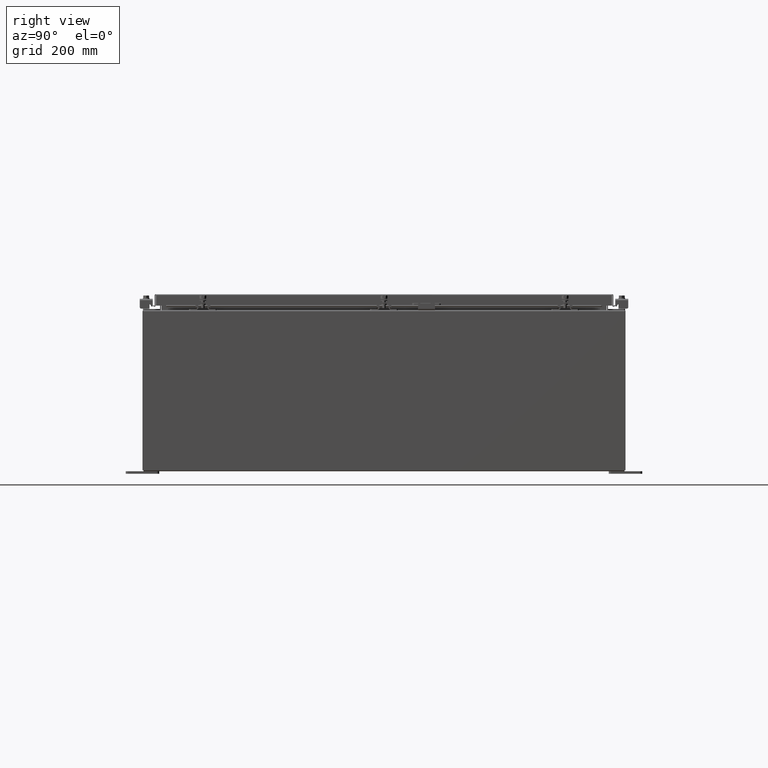
[diagram: clean part render]
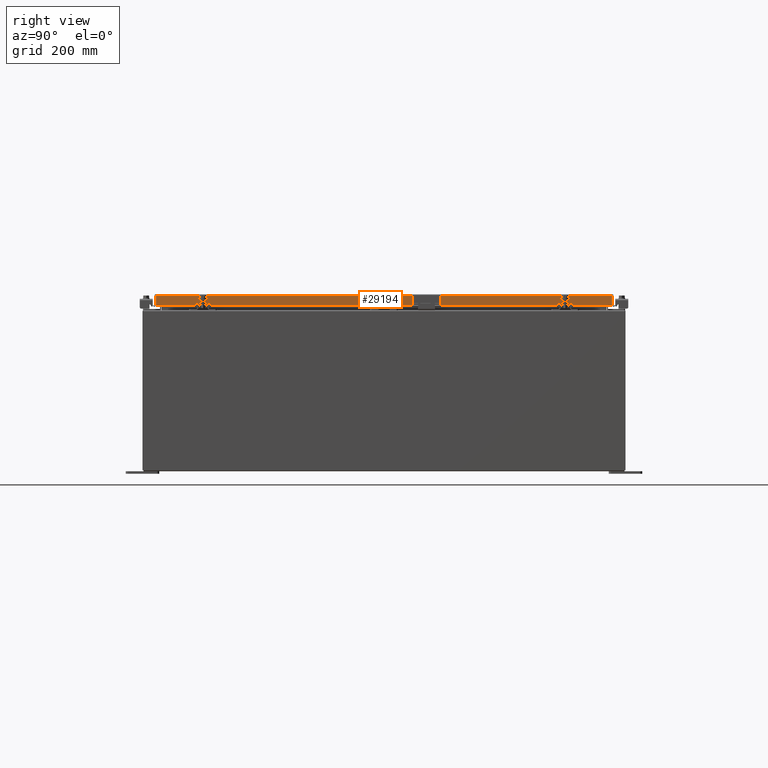
[diagram: same view with one face highlighted and labeled with its STEP entity id]
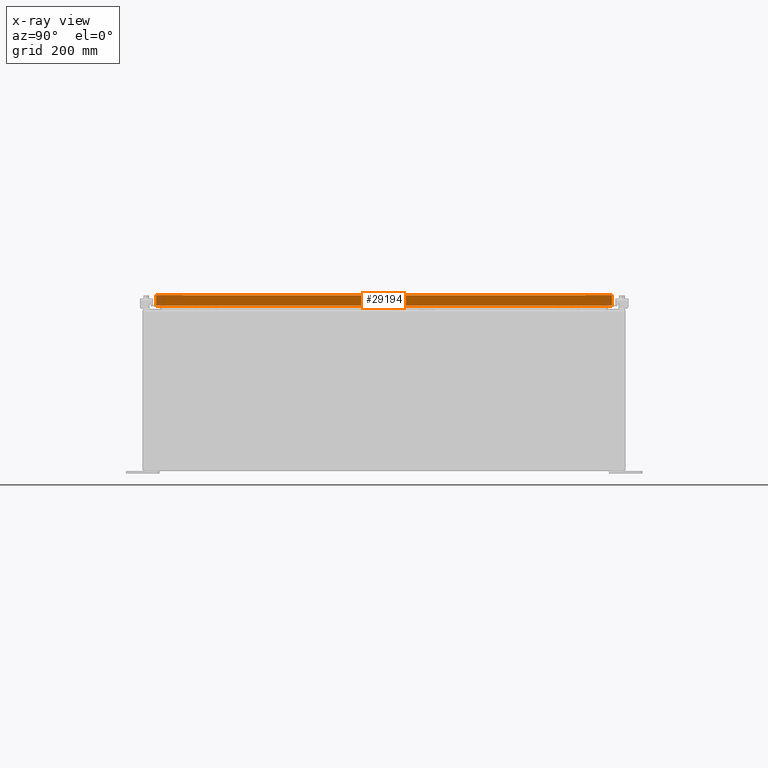
[diagram: x-ray of the same camera — body ghosted, the highlighted face saturated]
A machine part, right view. The second image highlights one B-rep face of the part: STEP entity #29194.
The next image is the same camera in x-ray: the body ghosted, the highlighted face saturated — about 0% of this face is hidden behind the body in this view.
In plain terms, the highlighted planar face has unit normal (1, 0, 0).
Its self-contained STEP definition (entity closure, byte-faithful):
#746 = VERTEX_POINT ( 'NONE', #9873 ) ;
#751 = LINE ( 'NONE', #34196, #6905 ) ;
#1526 = CARTESIAN_POINT ( 'NONE',  ( 17.07799999999999600, 16.25515786437628000, -0.8500000000000020900 ) ) ;
#2418 = VERTEX_POINT ( 'NONE', #44948 ) ;
#3901 = FACE_OUTER_BOUND ( 'NONE', #23941, .T. ) ;
#4815 = EDGE_CURVE ( 'NONE', #36355, #2418, #19688, .T. ) ;
#5673 = CARTESIAN_POINT ( 'NONE',  ( 17.07800000000000300, -17.09399999999999800, -0.8499999999999999800 ) ) ;
#6815 = DIRECTION ( 'NONE',  ( -2.818880942772360500E-015, -6.982962677686269100E-015, 1.000000000000000000 ) ) ;
#6905 = VECTOR ( 'NONE', #23527, 39.37007874015748100 ) ;
#8728 = VERTEX_POINT ( 'NONE', #1526 ) ;
#9055 = VECTOR ( 'NONE', #23497, 39.37007874015748100 ) ;
#9113 = EDGE_CURVE ( 'NONE', #42405, #746, #36698, .T. ) ;
#9873 = CARTESIAN_POINT ( 'NONE',  ( 17.07799999999999900, 17.00515786437627200, -0.08770000000000026400 ) ) ;
#10076 = CARTESIAN_POINT ( 'NONE',  ( 17.07799999999999900, 0.0000000000000000000, 4.808052468849102900E-014 ) ) ;
#12939 = ORIENTED_EDGE ( 'NONE', *, *, #25559, .F. ) ;
#13555 = ORIENTED_EDGE ( 'NONE', *, *, #30553, .F. ) ;
#14586 = ORIENTED_EDGE ( 'NONE', *, *, #23322, .T. ) ;
#17234 = PLANE ( 'NONE',  #29356 ) ;
#18593 = CARTESIAN_POINT ( 'NONE',  ( 17.07799999999999600, -16.25515786437626200, -0.8500000000000020900 ) ) ;
#19688 = LINE ( 'NONE', #5673, #9055 ) ;
#20377 = ORIENTED_EDGE ( 'NONE', *, *, #9113, .T. ) ;
#20832 = DIRECTION ( 'NONE',  ( 1.000000000000000000, 0.0000000000000000000, 2.818880942772360100E-015 ) ) ;
#21030 = DIRECTION ( 'NONE',  ( 0.0000000000000000000, -1.000000000000000000, 0.0000000000000000000 ) ) ;
#21460 = EDGE_CURVE ( 'NONE', #42405, #8728, #21722, .T. ) ;
#21722 = LINE ( 'NONE', #42792, #39688 ) ;
#22298 = DIRECTION ( 'NONE',  ( -2.818880942772360500E-015, -6.982962677686269100E-015, 1.000000000000000000 ) ) ;
#23322 = EDGE_CURVE ( 'NONE', #746, #34757, #46245, .T. ) ;
#23497 = DIRECTION ( 'NONE',  ( 0.0000000000000000000, -1.000000000000000000, 0.0000000000000000000 ) ) ;
#23527 = DIRECTION ( 'NONE',  ( 0.0000000000000000000, -1.000000000000000000, 0.0000000000000000000 ) ) ;
#23941 = EDGE_LOOP ( 'NONE', ( #13555, #30249, #12939, #42785, #20377, #14586 ) ) ;
#24926 = DIRECTION ( 'NONE',  ( 0.0000000000000000000, -1.000000000000000000, 0.0000000000000000000 ) ) ;
#25559 = EDGE_CURVE ( 'NONE', #8728, #36355, #751, .T. ) ;
#28279 = CARTESIAN_POINT ( 'NONE',  ( 17.07799999999999900, -17.00515786437626900, -0.07470000000000015500 ) ) ;
#29194 = ADVANCED_FACE ( 'NONE', ( #3901 ), #17234, .T. ) ;
#29356 = AXIS2_PLACEMENT_3D ( 'NONE', #10076, #20832, #45924 ) ;
#30249 = ORIENTED_EDGE ( 'NONE', *, *, #4815, .F. ) ;
#30553 = EDGE_CURVE ( 'NONE', #2418, #34757, #46354, .T. ) ;
#30846 = CARTESIAN_POINT ( 'NONE',  ( 17.07799999999999900, -17.00515786437626900, -0.08770000000000026400 ) ) ;
#34196 = CARTESIAN_POINT ( 'NONE',  ( 17.07799999999999600, 16.25515786437628000, -0.8500000000000020900 ) ) ;
#34757 = VERTEX_POINT ( 'NONE', #30846 ) ;
#36355 = VERTEX_POINT ( 'NONE', #18593 ) ;
#36698 = LINE ( 'NONE', #43767, #45065 ) ;
#36870 = VECTOR ( 'NONE', #6815, 39.37007874015748100 ) ;
#37890 = VECTOR ( 'NONE', #21030, 39.37007874015748100 ) ;
#38923 = CARTESIAN_POINT ( 'NONE',  ( 17.07799999999999900, 0.0000000000000000000, -0.08770000000000026400 ) ) ;
#39688 = VECTOR ( 'NONE', #24926, 39.37007874015748100 ) ;
#42405 = VERTEX_POINT ( 'NONE', #43286 ) ;
#42785 = ORIENTED_EDGE ( 'NONE', *, *, #21460, .F. ) ;
#42792 = CARTESIAN_POINT ( 'NONE',  ( 17.07800000000000300, -17.09399999999999800, -0.8499999999999999800 ) ) ;
#43286 = CARTESIAN_POINT ( 'NONE',  ( 17.07800000000000300, 17.00515786437628000, -0.8499999999999999800 ) ) ;
#43767 = CARTESIAN_POINT ( 'NONE',  ( 17.07799999999999900, 17.00515786437627600, 1.660963580147872000E-013 ) ) ;
#44948 = CARTESIAN_POINT ( 'NONE',  ( 17.07800000000000300, -17.00515786437626200, -0.8499999999999999800 ) ) ;
#45065 = VECTOR ( 'NONE', #22298, 39.37007874015748100 ) ;
#45924 = DIRECTION ( 'NONE',  ( 2.818880942772360100E-015, 0.0000000000000000000, -1.000000000000000000 ) ) ;
#46245 = LINE ( 'NONE', #38923, #37890 ) ;
#46354 = LINE ( 'NONE', #28279, #36870 ) ;